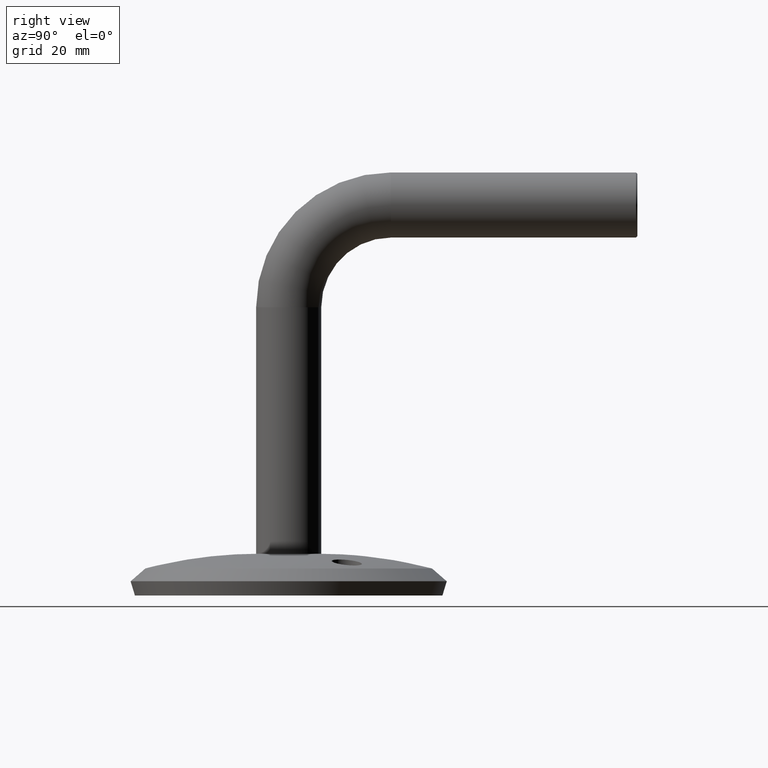
[diagram: clean part render]
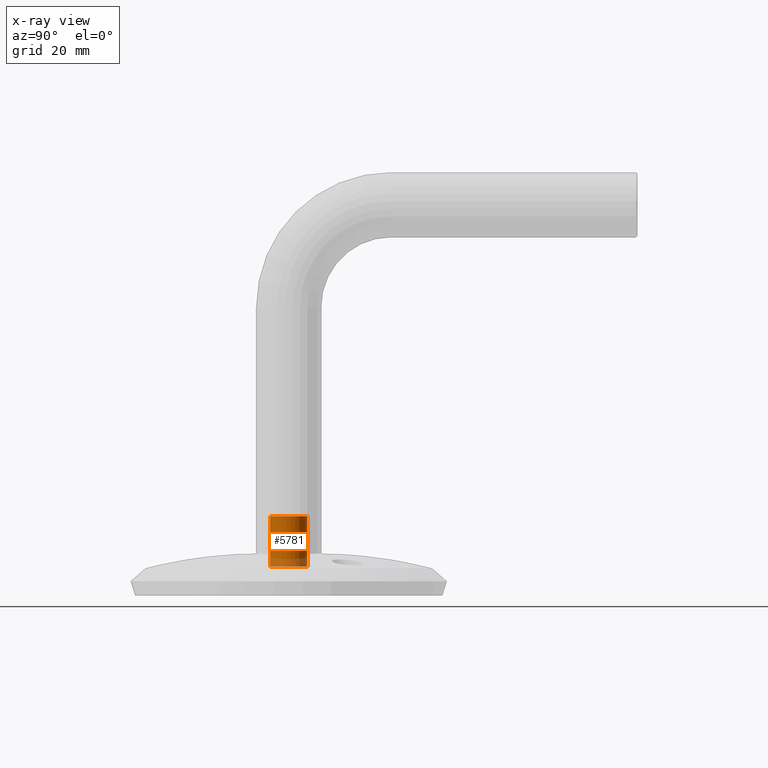
[diagram: x-ray — body ghosted, one internal face saturated and labeled with its STEP entity id]
A machine part, right view, then the same camera in x-ray: the body is ghosted and one INTERNAL B-rep face — a face not visible from any outside direction — is saturated and labeled: STEP entity #5781.
In plain terms, the highlighted cylindrical surface (edge-blend (fillet) strip) has radius 4 mm, axis along (0, 0, -1).
Its self-contained STEP definition (entity closure, byte-faithful):
#492 = VERTEX_POINT ( 'NONE', #515 ) ;
#515 = CARTESIAN_POINT ( 'NONE',  ( 7.347880794884117764E-16, -3.999999999999998224, 4.399999999999999467 ) ) ;
#908 = DIRECTION ( 'NONE',  ( -0.000000000000000000, 1.224646799147353207E-16, -1.000000000000000000 ) ) ;
#1079 = DIRECTION ( 'NONE',  ( 0.000000000000000000, -1.000000000000000000, 0.000000000000000000 ) ) ;
#2319 = ORIENTED_EDGE ( 'NONE', *, *, #10368, .F. ) ;
#2347 = CARTESIAN_POINT ( 'NONE',  ( 4.898587196589413815E-16, -4.000000000000002665, 15.19999999999999396 ) ) ;
#2458 = VERTEX_POINT ( 'NONE', #2347 ) ;
#2600 = EDGE_CURVE ( 'NONE', #9110, #2458, #13084, .T. ) ;
#2945 = CARTESIAN_POINT ( 'NONE',  ( 0.000000000000000000, -5.388445916248353027E-16, 4.400000000000000355 ) ) ;
#3054 = DIRECTION ( 'NONE',  ( 0.000000000000000000, 1.000000000000000000, 1.224646799147353207E-16 ) ) ;
#3318 = ORIENTED_EDGE ( 'NONE', *, *, #12103, .T. ) ;
#3379 = ORIENTED_EDGE ( 'NONE', *, *, #2600, .T. ) ;
#4110 = DIRECTION ( 'NONE',  ( 0.000000000000000000, 1.000000000000000000, 2.168404344971010347E-16 ) ) ;
#5062 = AXIS2_PLACEMENT_3D ( 'NONE', #2945, #5098, #4110 ) ;
#5098 = DIRECTION ( 'NONE',  ( -0.000000000000000000, 1.224646799147352961E-16, -1.000000000000000000 ) ) ;
#5143 = AXIS2_PLACEMENT_3D ( 'NONE', #9660, #908, #3054 ) ;
#5281 = CARTESIAN_POINT ( 'NONE',  ( 0.000000000000000000, -1.861463134703976303E-15, 15.19999999999999396 ) ) ;
#5359 = ORIENTED_EDGE ( 'NONE', *, *, #8992, .F. ) ;
#5776 = CARTESIAN_POINT ( 'NONE',  ( 0.000000000000000000, 3.999999999999997335, 15.19999999999999396 ) ) ;
#5781 = ADVANCED_FACE ( 'NONE', ( #13721 ), #7502, .T. ) ;
#5870 = AXIS2_PLACEMENT_3D ( 'NONE', #5281, #12872, #1079 ) ;
#6084 = VECTOR ( 'NONE', #11082, 1000.000000000000000 ) ;
#6819 = CARTESIAN_POINT ( 'NONE',  ( 4.898587196589412829E-16, -4.000000000000000000, -4.898587196589412829E-16 ) ) ;
#7502 = CYLINDRICAL_SURFACE ( 'NONE', #5143, 4.000000000000000000 ) ;
#7890 = CARTESIAN_POINT ( 'NONE',  ( 0.000000000000000000, 4.000000000000000000, 4.898587196589412829E-16 ) ) ;
#7953 = LINE ( 'NONE', #7890, #12874 ) ;
#8992 = EDGE_CURVE ( 'NONE', #9370, #492, #12034, .T. ) ;
#9110 = VERTEX_POINT ( 'NONE', #5776 ) ;
#9370 = VERTEX_POINT ( 'NONE', #12231 ) ;
#9660 = CARTESIAN_POINT ( 'NONE',  ( 0.000000000000000000, 0.000000000000000000, 0.000000000000000000 ) ) ;
#10368 = EDGE_CURVE ( 'NONE', #9110, #9370, #7953, .T. ) ;
#10682 = LINE ( 'NONE', #6819, #6084 ) ;
#10742 = EDGE_LOOP ( 'NONE', ( #3379, #3318, #5359, #2319 ) ) ;
#11082 = DIRECTION ( 'NONE',  ( -0.000000000000000000, 1.224646799147353207E-16, -1.000000000000000000 ) ) ;
#12034 = CIRCLE ( 'NONE', #5062, 3.999999999999997335 ) ;
#12103 = EDGE_CURVE ( 'NONE', #2458, #492, #10682, .T. ) ;
#12231 = CARTESIAN_POINT ( 'NONE',  ( 0.000000000000000000, 3.999999999999996447, 4.400000000000001243 ) ) ;
#12872 = DIRECTION ( 'NONE',  ( -0.000000000000000000, 1.224646799147352714E-16, -1.000000000000000000 ) ) ;
#12874 = VECTOR ( 'NONE', #13269, 1000.000000000000000 ) ;
#13084 = CIRCLE ( 'NONE', #5870, 4.000000000000000000 ) ;
#13269 = DIRECTION ( 'NONE',  ( -0.000000000000000000, 1.224646799147353207E-16, -1.000000000000000000 ) ) ;
#13721 = FACE_OUTER_BOUND ( 'NONE', #10742, .T. ) ;